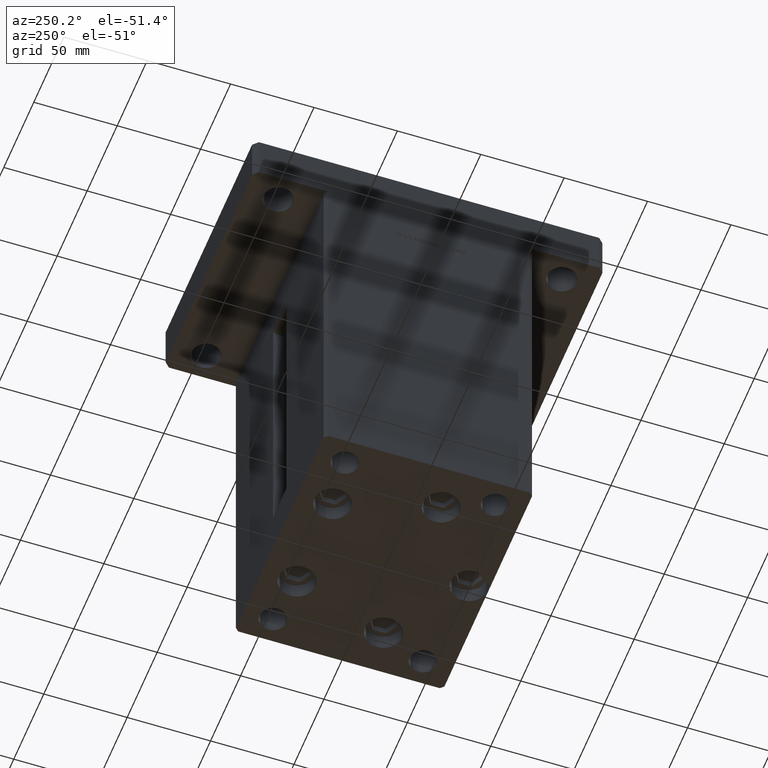
[diagram: clean part render]
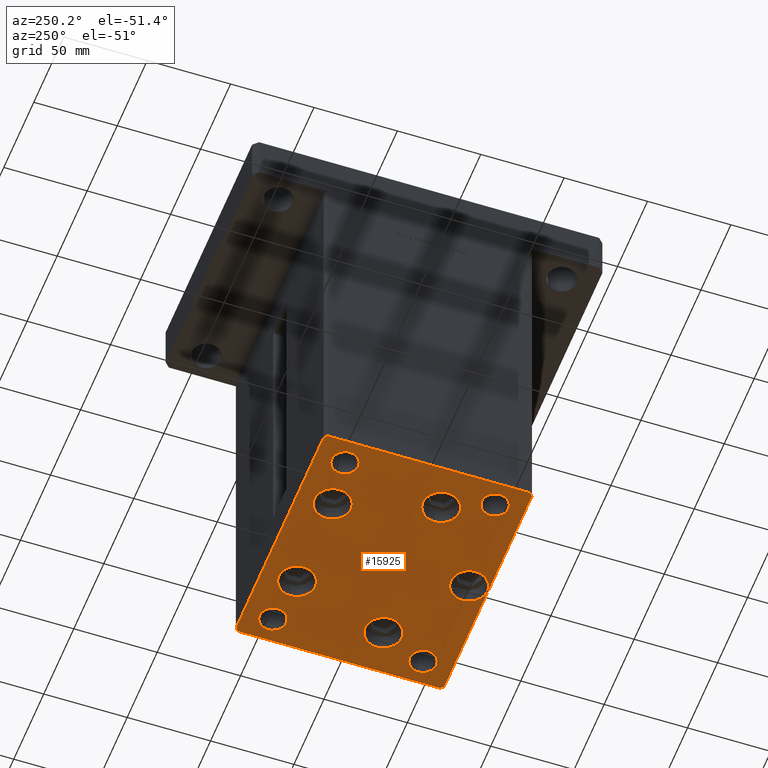
[diagram: same view with one face highlighted and labeled with its STEP entity id]
A machine part, auxiliary view. The second image highlights one B-rep face of the part: STEP entity #15925.
In plain terms, the highlighted planar face has unit normal (0, 0, -1).
Its self-contained STEP definition (entity closure, byte-faithful):
#232 = EDGE_CURVE ( 'NONE', #54593, #45523, #22670, .T. ) ;
#285 = ORIENTED_EDGE ( 'NONE', *, *, #14348, .T. ) ;
#344 = EDGE_CURVE ( 'NONE', #46107, #49242, #42284, .T. ) ;
#591 = VERTEX_POINT ( 'NONE', #35993 ) ;
#710 = CIRCLE ( 'NONE', #29304, 8.000000000000000000 ) ;
#1081 = EDGE_CURVE ( 'NONE', #47195, #4846, #1206, .T. ) ;
#1206 = LINE ( 'NONE', #48169, #25382 ) ;
#1317 = CARTESIAN_POINT ( 'NONE',  ( 60.00000000000000000, -44.99999999999999289, 0.000000000000000000 ) ) ;
#2355 = DIRECTION ( 'NONE',  ( 1.000000000000000000, 0.000000000000000000, 0.000000000000000000 ) ) ;
#2551 = DIRECTION ( 'NONE',  ( 1.000000000000000000, 0.000000000000000000, 0.000000000000000000 ) ) ;
#2612 = CARTESIAN_POINT ( 'NONE',  ( -75.00000000000001421, -60.50000000000001421, 0.000000000000000000 ) ) ;
#2808 = DIRECTION ( 'NONE',  ( 1.000000000000000000, 0.000000000000000000, 0.000000000000000000 ) ) ;
#2874 = LINE ( 'NONE', #49543, #51951 ) ;
#2888 = CARTESIAN_POINT ( 'NONE',  ( -51.99999999999999289, -45.00000000000000000, 0.000000000000000000 ) ) ;
#3198 = CIRCLE ( 'NONE', #18378, 8.000000000000000000 ) ;
#3348 = AXIS2_PLACEMENT_3D ( 'NONE', #1317, #49573, #2355 ) ;
#4026 = CIRCLE ( 'NONE', #14773, 11.00000000000000355 ) ;
#4053 = ORIENTED_EDGE ( 'NONE', *, *, #25023, .T. ) ;
#4208 = VECTOR ( 'NONE', #29108, 1000.000000000000114 ) ;
#4830 = CARTESIAN_POINT ( 'NONE',  ( -73.00000000000001421, -62.50000000000002842, 0.000000000000000000 ) ) ;
#4846 = VERTEX_POINT ( 'NONE', #27464 ) ;
#5414 = VERTEX_POINT ( 'NONE', #34562 ) ;
#5669 = CIRCLE ( 'NONE', #39599, 11.00000000000000000 ) ;
#5692 = CARTESIAN_POINT ( 'NONE',  ( 68.00000000000000000, -44.99999999999999289, 0.000000000000000000 ) ) ;
#5694 = DIRECTION ( 'NONE',  ( -1.000000000000000000, -1.901066822988282689E-16, 0.000000000000000000 ) ) ;
#5824 = VECTOR ( 'NONE', #8791, 1000.000000000000000 ) ;
#5870 = CARTESIAN_POINT ( 'NONE',  ( 6.245698675651500444E-15, -51.00000000000000000, 0.000000000000000000 ) ) ;
#6097 = EDGE_LOOP ( 'NONE', ( #13587, #7757 ) ) ;
#6494 = ORIENTED_EDGE ( 'NONE', *, *, #20271, .T. ) ;
#6590 = CIRCLE ( 'NONE', #47641, 11.00000000000000000 ) ;
#6852 = DIRECTION ( 'NONE',  ( 1.000000000000000000, 0.000000000000000000, 0.000000000000000000 ) ) ;
#7034 = CARTESIAN_POINT ( 'NONE',  ( 74.99999999999992895, 60.50000000000002842, 0.000000000000000000 ) ) ;
#7190 = CIRCLE ( 'NONE', #41109, 8.000000000000000000 ) ;
#7282 = FACE_BOUND ( 'NONE', #11438, .T. ) ;
#7480 = CARTESIAN_POINT ( 'NONE',  ( -52.00000000000000000, 45.00000000000000000, 0.000000000000000000 ) ) ;
#7490 = VERTEX_POINT ( 'NONE', #2888 ) ;
#7546 = FACE_BOUND ( 'NONE', #6097, .T. ) ;
#7757 = ORIENTED_EDGE ( 'NONE', *, *, #35682, .F. ) ;
#7824 = VECTOR ( 'NONE', #27522, 1000.000000000000114 ) ;
#7850 = AXIS2_PLACEMENT_3D ( 'NONE', #15675, #44742, #2808 ) ;
#8426 = ORIENTED_EDGE ( 'NONE', *, *, #47589, .T. ) ;
#8567 = CARTESIAN_POINT ( 'NONE',  ( 68.00000000000000000, 44.99999999999999289, 0.000000000000000000 ) ) ;
#8791 = DIRECTION ( 'NONE',  ( 0.000000000000000000, -1.000000000000000000, 0.000000000000000000 ) ) ;
#9478 = CARTESIAN_POINT ( 'NONE',  ( -67.99999999999998579, -45.00000000000000000, 0.000000000000000000 ) ) ;
#9602 = VECTOR ( 'NONE', #5694, 1000.000000000000000 ) ;
#10102 = CARTESIAN_POINT ( 'NONE',  ( -59.99999999999999289, -45.00000000000000000, 0.000000000000000000 ) ) ;
#10160 = CARTESIAN_POINT ( 'NONE',  ( 73.00000000000001421, -62.50000000000001421, 0.000000000000000000 ) ) ;
#10161 = AXIS2_PLACEMENT_3D ( 'NONE', #42248, #54808, #33053 ) ;
#10302 = DIRECTION ( 'NONE',  ( 1.000000000000000000, 0.000000000000000000, 0.000000000000000000 ) ) ;
#10643 = FACE_BOUND ( 'NONE', #27025, .T. ) ;
#11066 = AXIS2_PLACEMENT_3D ( 'NONE', #12411, #24172, #6852 ) ;
#11200 = FACE_BOUND ( 'NONE', #14826, .T. ) ;
#11254 = VERTEX_POINT ( 'NONE', #39968 ) ;
#11438 = EDGE_LOOP ( 'NONE', ( #6494, #11933 ) ) ;
#11933 = ORIENTED_EDGE ( 'NONE', *, *, #13602, .T. ) ;
#11948 = CARTESIAN_POINT ( 'NONE',  ( -73.00000000000001421, 62.49999999999998579, 0.000000000000000000 ) ) ;
#12411 = CARTESIAN_POINT ( 'NONE',  ( -48.08326112068522207, -17.00000000000000711, 0.000000000000000000 ) ) ;
#12798 = DIRECTION ( 'NONE',  ( -0.000000000000000000, 0.000000000000000000, 1.000000000000000000 ) ) ;
#13587 = ORIENTED_EDGE ( 'NONE', *, *, #41783, .F. ) ;
#13595 = VERTEX_POINT ( 'NONE', #52733 ) ;
#13602 = EDGE_CURVE ( 'NONE', #49421, #42817, #45245, .T. ) ;
#14047 = AXIS2_PLACEMENT_3D ( 'NONE', #24639, #20167, #37231 ) ;
#14348 = EDGE_CURVE ( 'NONE', #43518, #44590, #15700, .T. ) ;
#14400 = EDGE_CURVE ( 'NONE', #7490, #32962, #34581, .T. ) ;
#14570 = AXIS2_PLACEMENT_3D ( 'NONE', #53280, #44631, #23660 ) ;
#14773 = AXIS2_PLACEMENT_3D ( 'NONE', #23459, #40500, #33170 ) ;
#14784 = EDGE_CURVE ( 'NONE', #36774, #27704, #40820, .T. ) ;
#14826 = EDGE_LOOP ( 'NONE', ( #52512, #4053 ) ) ;
#14966 = ORIENTED_EDGE ( 'NONE', *, *, #27708, .T. ) ;
#15066 = EDGE_LOOP ( 'NONE', ( #52663, #14966 ) ) ;
#15123 = PLANE ( 'NONE',  #7850 ) ;
#15176 = DIRECTION ( 'NONE',  ( 0.000000000000000000, -0.000000000000000000, -1.000000000000000000 ) ) ;
#15675 = CARTESIAN_POINT ( 'NONE',  ( 0.000000000000000000, 0.000000000000000000, 0.000000000000000000 ) ) ;
#15698 = AXIS2_PLACEMENT_3D ( 'NONE', #34554, #51597, #25910 ) ;
#15700 = LINE ( 'NONE', #7034, #4208 ) ;
#15726 = EDGE_LOOP ( 'NONE', ( #28131, #28509 ) ) ;
#15925 = ADVANCED_FACE ( 'NONE', ( #45842, #11200, #41380, #7282, #10643, #24333, #27706, #7546, #50035, #19321 ), #15123, .T. ) ;
#16231 = EDGE_CURVE ( 'NONE', #44590, #47195, #38161, .T. ) ;
#16357 = EDGE_CURVE ( 'NONE', #5414, #11254, #26960, .T. ) ;
#16495 = VERTEX_POINT ( 'NONE', #29965 ) ;
#16777 = ORIENTED_EDGE ( 'NONE', *, *, #27239, .T. ) ;
#17003 = CIRCLE ( 'NONE', #36673, 11.00000000000000355 ) ;
#17431 = EDGE_CURVE ( 'NONE', #49242, #46107, #38671, .T. ) ;
#17684 = DIRECTION ( 'NONE',  ( 0.000000000000000000, -0.000000000000000000, -1.000000000000000000 ) ) ;
#17932 = DIRECTION ( 'NONE',  ( 1.000000000000000000, 0.000000000000000000, 0.000000000000000000 ) ) ;
#18378 = AXIS2_PLACEMENT_3D ( 'NONE', #10102, #45859, #2551 ) ;
#18530 = EDGE_CURVE ( 'NONE', #30027, #591, #5669, .T. ) ;
#19321 = FACE_BOUND ( 'NONE', #31522, .T. ) ;
#19983 = ORIENTED_EDGE ( 'NONE', *, *, #16231, .T. ) ;
#20167 = DIRECTION ( 'NONE',  ( 0.000000000000000000, -0.000000000000000000, -1.000000000000000000 ) ) ;
#20271 = EDGE_CURVE ( 'NONE', #42817, #49421, #6590, .T. ) ;
#20813 = DIRECTION ( 'NONE',  ( 1.000000000000000000, 0.000000000000000000, 0.000000000000000000 ) ) ;
#21042 = CARTESIAN_POINT ( 'NONE',  ( -10.99999999999999289, -51.00000000000000000, 0.000000000000000000 ) ) ;
#21105 = LINE ( 'NONE', #37885, #5824 ) ;
#21139 = AXIS2_PLACEMENT_3D ( 'NONE', #27866, #35695, #40168 ) ;
#21183 = ORIENTED_EDGE ( 'NONE', *, *, #32574, .T. ) ;
#21916 = AXIS2_PLACEMENT_3D ( 'NONE', #38918, #17684, #52584 ) ;
#22572 = VECTOR ( 'NONE', #43991, 1000.000000000000000 ) ;
#22649 = CIRCLE ( 'NONE', #11066, 11.00000000000000355 ) ;
#22670 = CIRCLE ( 'NONE', #41419, 11.00000000000000355 ) ;
#23415 = EDGE_CURVE ( 'NONE', #45523, #54593, #4026, .T. ) ;
#23459 = CARTESIAN_POINT ( 'NONE',  ( 48.08326112068522207, -16.99999999999999645, 0.000000000000000000 ) ) ;
#23660 = DIRECTION ( 'NONE',  ( 1.000000000000000000, 0.000000000000000000, 0.000000000000000000 ) ) ;
#24107 = VERTEX_POINT ( 'NONE', #37773 ) ;
#24172 = DIRECTION ( 'NONE',  ( 0.000000000000000000, -0.000000000000000000, -1.000000000000000000 ) ) ;
#24333 = FACE_BOUND ( 'NONE', #15726, .T. ) ;
#24639 = CARTESIAN_POINT ( 'NONE',  ( -59.99999999999999289, -45.00000000000000000, 0.000000000000000000 ) ) ;
#24787 = CARTESIAN_POINT ( 'NONE',  ( -29.73102073172060500, 41.43749999999998579, 0.000000000000000000 ) ) ;
#25023 = EDGE_CURVE ( 'NONE', #16495, #26383, #39799, .T. ) ;
#25382 = VECTOR ( 'NONE', #31409, 1000.000000000000114 ) ;
#25595 = ORIENTED_EDGE ( 'NONE', *, *, #18530, .T. ) ;
#25766 = ORIENTED_EDGE ( 'NONE', *, *, #232, .T. ) ;
#25910 = DIRECTION ( 'NONE',  ( 1.000000000000000000, 0.000000000000000000, 0.000000000000000000 ) ) ;
#26176 = DIRECTION ( 'NONE',  ( 1.000000000000000000, 0.000000000000000000, 0.000000000000000000 ) ) ;
#26383 = VERTEX_POINT ( 'NONE', #55042 ) ;
#26911 = EDGE_CURVE ( 'NONE', #591, #30027, #51428, .T. ) ;
#26942 = VERTEX_POINT ( 'NONE', #7480 ) ;
#26960 = LINE ( 'NONE', #10160, #22572 ) ;
#27025 = EDGE_LOOP ( 'NONE', ( #37941, #43866 ) ) ;
#27239 = EDGE_CURVE ( 'NONE', #4846, #44031, #21105, .T. ) ;
#27464 = CARTESIAN_POINT ( 'NONE',  ( -75.00000000000001421, 60.49999999999997158, 0.000000000000000000 ) ) ;
#27522 = DIRECTION ( 'NONE',  ( 0.7071067811865451302, -0.7071067811865500152, 0.000000000000000000 ) ) ;
#27704 = VERTEX_POINT ( 'NONE', #35264 ) ;
#27706 = FACE_BOUND ( 'NONE', #15066, .T. ) ;
#27708 = EDGE_CURVE ( 'NONE', #27704, #36774, #29062, .T. ) ;
#27852 = CARTESIAN_POINT ( 'NONE',  ( -18.73102073172060500, 41.43749999999998579, 0.000000000000000000 ) ) ;
#27866 = CARTESIAN_POINT ( 'NONE',  ( 6.245698675651500444E-15, -51.00000000000000000, 0.000000000000000000 ) ) ;
#28023 = CARTESIAN_POINT ( 'NONE',  ( 48.08326112068522207, -16.99999999999999645, 0.000000000000000000 ) ) ;
#28131 = ORIENTED_EDGE ( 'NONE', *, *, #344, .F. ) ;
#28509 = ORIENTED_EDGE ( 'NONE', *, *, #17431, .F. ) ;
#28517 = VERTEX_POINT ( 'NONE', #33626 ) ;
#28587 = CARTESIAN_POINT ( 'NONE',  ( 37.08326112068521496, -16.99999999999999645, 0.000000000000000000 ) ) ;
#28780 = EDGE_CURVE ( 'NONE', #32962, #7490, #3198, .T. ) ;
#29062 = CIRCLE ( 'NONE', #21916, 8.000000000000007105 ) ;
#29108 = DIRECTION ( 'NONE',  ( -0.7071067811865500152, 0.7071067811865451302, 0.000000000000000000 ) ) ;
#29304 = AXIS2_PLACEMENT_3D ( 'NONE', #32866, #53800, #32587 ) ;
#29745 = CARTESIAN_POINT ( 'NONE',  ( -48.08326112068522207, -17.00000000000000711, 0.000000000000000000 ) ) ;
#29848 = ORIENTED_EDGE ( 'NONE', *, *, #16357, .T. ) ;
#29965 = CARTESIAN_POINT ( 'NONE',  ( 40.73102073172059079, 41.43749999999999289, 0.000000000000000000 ) ) ;
#30027 = VERTEX_POINT ( 'NONE', #27852 ) ;
#30066 = DIRECTION ( 'NONE',  ( 1.000000000000000000, 0.000000000000000000, 0.000000000000000000 ) ) ;
#30417 = CARTESIAN_POINT ( 'NONE',  ( 74.99999999999992895, 60.50000000000002842, 0.000000000000000000 ) ) ;
#30565 = CARTESIAN_POINT ( 'NONE',  ( 51.99999999999999289, 44.99999999999999289, 0.000000000000000000 ) ) ;
#30976 = CARTESIAN_POINT ( 'NONE',  ( -60.00000000000000000, 45.00000000000000000, 0.000000000000000000 ) ) ;
#31409 = DIRECTION ( 'NONE',  ( -0.7071067811865451302, -0.7071067811865500152, 0.000000000000000000 ) ) ;
#31522 = EDGE_LOOP ( 'NONE', ( #54102, #44730 ) ) ;
#31954 = DIRECTION ( 'NONE',  ( 1.000000000000000000, 0.000000000000000000, 0.000000000000000000 ) ) ;
#32574 = EDGE_CURVE ( 'NONE', #11254, #43518, #36708, .T. ) ;
#32587 = DIRECTION ( 'NONE',  ( 1.000000000000000000, 0.000000000000000000, 0.000000000000000000 ) ) ;
#32866 = CARTESIAN_POINT ( 'NONE',  ( -60.00000000000000000, 45.00000000000000000, 0.000000000000000000 ) ) ;
#32962 = VERTEX_POINT ( 'NONE', #9478 ) ;
#33053 = DIRECTION ( 'NONE',  ( 1.000000000000000000, 0.000000000000000000, 0.000000000000000000 ) ) ;
#33170 = DIRECTION ( 'NONE',  ( 1.000000000000000000, 0.000000000000000000, 0.000000000000000000 ) ) ;
#33453 = CARTESIAN_POINT ( 'NONE',  ( 59.08326112068522207, -16.99999999999999645, 0.000000000000000000 ) ) ;
#33626 = CARTESIAN_POINT ( 'NONE',  ( -37.08326112068521496, -17.00000000000000711, 0.000000000000000000 ) ) ;
#33639 = VECTOR ( 'NONE', #50360, 1000.000000000000000 ) ;
#33672 = DIRECTION ( 'NONE',  ( 0.000000000000000000, -0.000000000000000000, -1.000000000000000000 ) ) ;
#34242 = EDGE_CURVE ( 'NONE', #44031, #39502, #40924, .T. ) ;
#34554 = CARTESIAN_POINT ( 'NONE',  ( 29.73102073172059789, 41.43749999999999289, 0.000000000000000000 ) ) ;
#34562 = CARTESIAN_POINT ( 'NONE',  ( 73.00000000000001421, -62.50000000000001421, 0.000000000000000000 ) ) ;
#34581 = CIRCLE ( 'NONE', #14047, 8.000000000000000000 ) ;
#34704 = DIRECTION ( 'NONE',  ( 0.000000000000000000, -0.000000000000000000, -1.000000000000000000 ) ) ;
#34949 = CARTESIAN_POINT ( 'NONE',  ( -75.00000000000001421, -60.50000000000001421, 0.000000000000000000 ) ) ;
#35264 = CARTESIAN_POINT ( 'NONE',  ( 51.99999999999999289, -44.99999999999999289, 0.000000000000000000 ) ) ;
#35682 = EDGE_CURVE ( 'NONE', #13595, #26942, #710, .T. ) ;
#35695 = DIRECTION ( 'NONE',  ( 0.000000000000000000, -0.000000000000000000, -1.000000000000000000 ) ) ;
#35993 = CARTESIAN_POINT ( 'NONE',  ( -40.73102073172060500, 41.43749999999998579, 0.000000000000000000 ) ) ;
#36233 = EDGE_LOOP ( 'NONE', ( #25766, #43029 ) ) ;
#36673 = AXIS2_PLACEMENT_3D ( 'NONE', #29745, #33672, #20813 ) ;
#36708 = LINE ( 'NONE', #49535, #33639 ) ;
#36774 = VERTEX_POINT ( 'NONE', #5692 ) ;
#36985 = DIRECTION ( 'NONE',  ( 1.000000000000000000, 9.505334114941407284E-17, 0.000000000000000000 ) ) ;
#37102 = EDGE_LOOP ( 'NONE', ( #51879, #8426, #29848, #21183, #285, #19983, #37722, #16777 ) ) ;
#37231 = DIRECTION ( 'NONE',  ( 1.000000000000000000, 0.000000000000000000, 0.000000000000000000 ) ) ;
#37722 = ORIENTED_EDGE ( 'NONE', *, *, #1081, .T. ) ;
#37773 = CARTESIAN_POINT ( 'NONE',  ( -59.08326112068522207, -17.00000000000000711, 0.000000000000000000 ) ) ;
#37885 = CARTESIAN_POINT ( 'NONE',  ( -75.00000000000001421, 60.49999999999997158, 0.000000000000000000 ) ) ;
#37941 = ORIENTED_EDGE ( 'NONE', *, *, #46395, .T. ) ;
#38161 = LINE ( 'NONE', #52376, #9602 ) ;
#38469 = CARTESIAN_POINT ( 'NONE',  ( 72.99999999999992895, 62.50000000000001421, 0.000000000000000000 ) ) ;
#38671 = CIRCLE ( 'NONE', #14570, 8.000000000000007105 ) ;
#38918 = CARTESIAN_POINT ( 'NONE',  ( 60.00000000000000000, -44.99999999999999289, 0.000000000000000000 ) ) ;
#39502 = VERTEX_POINT ( 'NONE', #4830 ) ;
#39599 = AXIS2_PLACEMENT_3D ( 'NONE', #24787, #41830, #30066 ) ;
#39799 = CIRCLE ( 'NONE', #15698, 10.99999999999999645 ) ;
#39943 = CARTESIAN_POINT ( 'NONE',  ( -29.73102073172060500, 41.43749999999998579, 0.000000000000000000 ) ) ;
#39968 = CARTESIAN_POINT ( 'NONE',  ( 75.00000000000001421, -60.50000000000000711, 0.000000000000000000 ) ) ;
#40168 = DIRECTION ( 'NONE',  ( 1.000000000000000000, 0.000000000000000000, 0.000000000000000000 ) ) ;
#40500 = DIRECTION ( 'NONE',  ( 0.000000000000000000, -0.000000000000000000, -1.000000000000000000 ) ) ;
#40820 = CIRCLE ( 'NONE', #3348, 8.000000000000007105 ) ;
#40924 = LINE ( 'NONE', #2612, #7824 ) ;
#41109 = AXIS2_PLACEMENT_3D ( 'NONE', #30976, #12798, #51911 ) ;
#41380 = FACE_BOUND ( 'NONE', #36233, .T. ) ;
#41419 = AXIS2_PLACEMENT_3D ( 'NONE', #28023, #15176, #31954 ) ;
#41783 = EDGE_CURVE ( 'NONE', #26942, #13595, #7190, .T. ) ;
#41830 = DIRECTION ( 'NONE',  ( 0.000000000000000000, -0.000000000000000000, -1.000000000000000000 ) ) ;
#42248 = CARTESIAN_POINT ( 'NONE',  ( 60.00000000000000000, 44.99999999999999289, 0.000000000000000000 ) ) ;
#42284 = CIRCLE ( 'NONE', #10161, 8.000000000000007105 ) ;
#42817 = VERTEX_POINT ( 'NONE', #21042 ) ;
#43029 = ORIENTED_EDGE ( 'NONE', *, *, #23415, .T. ) ;
#43518 = VERTEX_POINT ( 'NONE', #30417 ) ;
#43784 = DIRECTION ( 'NONE',  ( 0.000000000000000000, -0.000000000000000000, -1.000000000000000000 ) ) ;
#43866 = ORIENTED_EDGE ( 'NONE', *, *, #49153, .T. ) ;
#43991 = DIRECTION ( 'NONE',  ( 0.7071067811865463515, 0.7071067811865487940, 0.000000000000000000 ) ) ;
#44031 = VERTEX_POINT ( 'NONE', #34949 ) ;
#44590 = VERTEX_POINT ( 'NONE', #38469 ) ;
#44631 = DIRECTION ( 'NONE',  ( -0.000000000000000000, 0.000000000000000000, 1.000000000000000000 ) ) ;
#44730 = ORIENTED_EDGE ( 'NONE', *, *, #28780, .T. ) ;
#44742 = DIRECTION ( 'NONE',  ( -0.000000000000000000, 0.000000000000000000, 1.000000000000000000 ) ) ;
#45245 = CIRCLE ( 'NONE', #21139, 11.00000000000000000 ) ;
#45523 = VERTEX_POINT ( 'NONE', #33453 ) ;
#45842 = FACE_BOUND ( 'NONE', #46123, .T. ) ;
#45859 = DIRECTION ( 'NONE',  ( 0.000000000000000000, -0.000000000000000000, -1.000000000000000000 ) ) ;
#46107 = VERTEX_POINT ( 'NONE', #8567 ) ;
#46123 = EDGE_LOOP ( 'NONE', ( #53341, #25595 ) ) ;
#46196 = EDGE_CURVE ( 'NONE', #26383, #16495, #49138, .T. ) ;
#46395 = EDGE_CURVE ( 'NONE', #24107, #28517, #17003, .T. ) ;
#47195 = VERTEX_POINT ( 'NONE', #11948 ) ;
#47527 = DIRECTION ( 'NONE',  ( 0.000000000000000000, -0.000000000000000000, -1.000000000000000000 ) ) ;
#47589 = EDGE_CURVE ( 'NONE', #39502, #5414, #2874, .T. ) ;
#47641 = AXIS2_PLACEMENT_3D ( 'NONE', #5870, #47527, #17932 ) ;
#48169 = CARTESIAN_POINT ( 'NONE',  ( -73.00000000000001421, 62.49999999999998579, 0.000000000000000000 ) ) ;
#48241 = CARTESIAN_POINT ( 'NONE',  ( 29.73102073172059789, 41.43749999999999289, 0.000000000000000000 ) ) ;
#49138 = CIRCLE ( 'NONE', #50020, 10.99999999999999645 ) ;
#49153 = EDGE_CURVE ( 'NONE', #28517, #24107, #22649, .T. ) ;
#49242 = VERTEX_POINT ( 'NONE', #30565 ) ;
#49421 = VERTEX_POINT ( 'NONE', #53993 ) ;
#49535 = CARTESIAN_POINT ( 'NONE',  ( 75.00000000000001421, -60.50000000000000711, 0.000000000000000000 ) ) ;
#49543 = CARTESIAN_POINT ( 'NONE',  ( -73.00000000000001421, -62.50000000000002842, 0.000000000000000000 ) ) ;
#49573 = DIRECTION ( 'NONE',  ( 0.000000000000000000, -0.000000000000000000, -1.000000000000000000 ) ) ;
#50020 = AXIS2_PLACEMENT_3D ( 'NONE', #48241, #43784, #26176 ) ;
#50035 = FACE_OUTER_BOUND ( 'NONE', #37102, .T. ) ;
#50360 = DIRECTION ( 'NONE',  ( -6.881547673296424104E-16, 1.000000000000000000, 0.000000000000000000 ) ) ;
#51428 = CIRCLE ( 'NONE', #53227, 11.00000000000000000 ) ;
#51597 = DIRECTION ( 'NONE',  ( 0.000000000000000000, -0.000000000000000000, -1.000000000000000000 ) ) ;
#51879 = ORIENTED_EDGE ( 'NONE', *, *, #34242, .T. ) ;
#51911 = DIRECTION ( 'NONE',  ( 1.000000000000000000, 0.000000000000000000, 0.000000000000000000 ) ) ;
#51951 = VECTOR ( 'NONE', #36985, 1000.000000000000000 ) ;
#52376 = CARTESIAN_POINT ( 'NONE',  ( 72.99999999999992895, 62.50000000000001421, 0.000000000000000000 ) ) ;
#52512 = ORIENTED_EDGE ( 'NONE', *, *, #46196, .T. ) ;
#52584 = DIRECTION ( 'NONE',  ( 1.000000000000000000, 0.000000000000000000, 0.000000000000000000 ) ) ;
#52663 = ORIENTED_EDGE ( 'NONE', *, *, #14784, .T. ) ;
#52733 = CARTESIAN_POINT ( 'NONE',  ( -67.99999999999998579, 45.00000000000000000, 0.000000000000000000 ) ) ;
#53227 = AXIS2_PLACEMENT_3D ( 'NONE', #39943, #34704, #10302 ) ;
#53280 = CARTESIAN_POINT ( 'NONE',  ( 60.00000000000000000, 44.99999999999999289, 0.000000000000000000 ) ) ;
#53341 = ORIENTED_EDGE ( 'NONE', *, *, #26911, .T. ) ;
#53800 = DIRECTION ( 'NONE',  ( -0.000000000000000000, 0.000000000000000000, 1.000000000000000000 ) ) ;
#53993 = CARTESIAN_POINT ( 'NONE',  ( 11.00000000000000711, -51.00000000000000000, 0.000000000000000000 ) ) ;
#54102 = ORIENTED_EDGE ( 'NONE', *, *, #14400, .T. ) ;
#54593 = VERTEX_POINT ( 'NONE', #28587 ) ;
#54808 = DIRECTION ( 'NONE',  ( -0.000000000000000000, 0.000000000000000000, 1.000000000000000000 ) ) ;
#55042 = CARTESIAN_POINT ( 'NONE',  ( 18.73102073172060500, 41.43749999999999289, 0.000000000000000000 ) ) ;